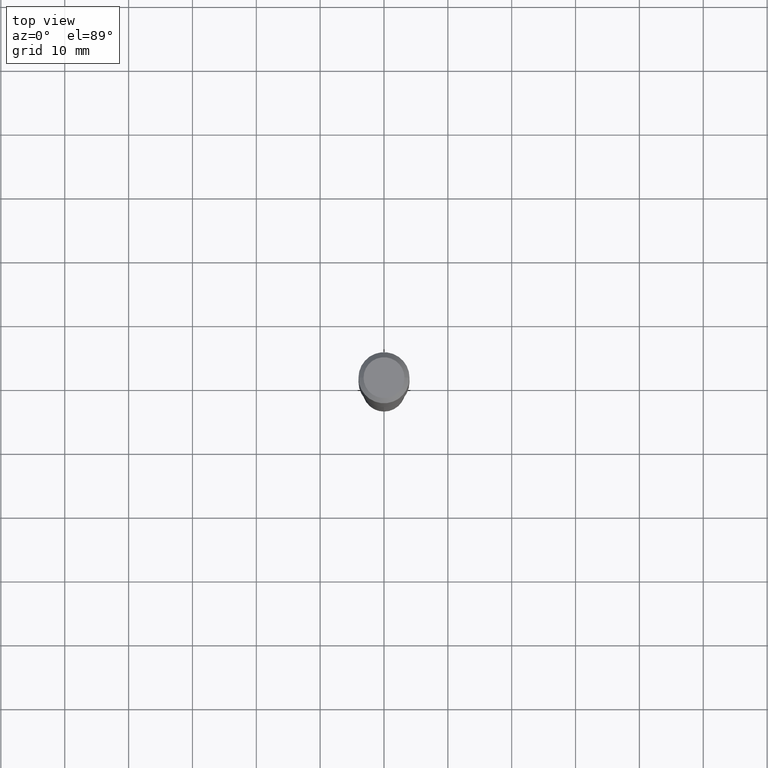
[diagram: clean part render]
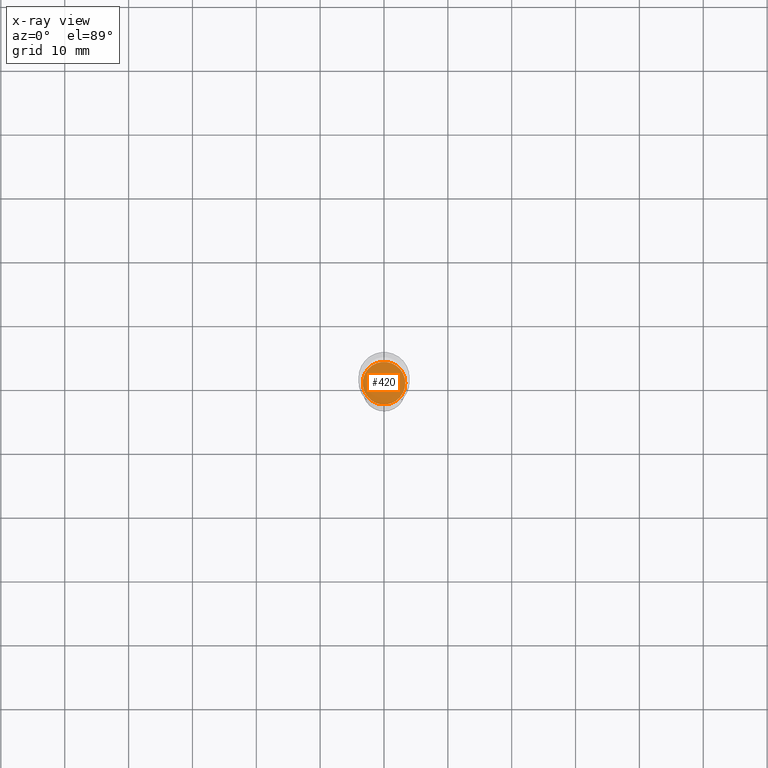
[diagram: x-ray — body ghosted, one internal face saturated and labeled with its STEP entity id]
A machine part, top view, then the same camera in x-ray: the body is ghosted and one INTERNAL B-rep face — a face not visible from any outside direction — is saturated and labeled: STEP entity #420.
In plain terms, the highlighted planar face has unit normal (-0, 0, 1).
Its self-contained STEP definition (entity closure, byte-faithful):
#2 = EDGE_CURVE ( 'NONE', #22, #226, #352, .T. ) ;
#22 = VERTEX_POINT ( 'NONE', #126 ) ;
#32 = DIRECTION ( 'NONE',  ( 1.000000000000000000, -6.982962677686265133E-15, 0.000000000000000000 ) ) ;
#38 = PLANE ( 'NONE',  #78 ) ;
#51 = AXIS2_PLACEMENT_3D ( 'NONE', #168, #317, #32 ) ;
#66 = CARTESIAN_POINT ( 'NONE',  ( -9.017535279989762188E-30, -1.505812983671227706E-14, -1.968499999999999694 ) ) ;
#78 = AXIS2_PLACEMENT_3D ( 'NONE', #66, #210, #327 ) ;
#90 = DIRECTION ( 'NONE',  ( -2.445468806185136597E-29, 3.491481338843145583E-15, 1.000000000000000000 ) ) ;
#126 = CARTESIAN_POINT ( 'NONE',  ( 0.1313999999999999890, -7.790542311360707115E-15, -1.968500000000000139 ) ) ;
#136 = CARTESIAN_POINT ( 'NONE',  ( 4.813905344975441835E-29, -6.872981015512731707E-15, -1.968500000000000139 ) ) ;
#168 = CARTESIAN_POINT ( 'NONE',  ( 4.813905344975441835E-29, -6.872981015512731707E-15, -1.968500000000000139 ) ) ;
#195 = CIRCLE ( 'NONE', #51, 0.1313999999999999890 ) ;
#207 = CARTESIAN_POINT ( 'NONE',  ( -0.1313999999999999890, -5.936678633549849137E-15, -1.968500000000000139 ) ) ;
#210 = DIRECTION ( 'NONE',  ( -2.438088387897960049E-29, 3.491481338843145188E-15, 1.000000000000000000 ) ) ;
#226 = VERTEX_POINT ( 'NONE', #207 ) ;
#252 = EDGE_LOOP ( 'NONE', ( #470, #302 ) ) ;
#299 = AXIS2_PLACEMENT_3D ( 'NONE', #136, #90, #312 ) ;
#302 = ORIENTED_EDGE ( 'NONE', *, *, #361, .F. ) ;
#312 = DIRECTION ( 'NONE',  ( 1.000000000000000000, -6.982962677686265133E-15, 0.000000000000000000 ) ) ;
#317 = DIRECTION ( 'NONE',  ( -2.445468806185136597E-29, 3.491481338843145583E-15, 1.000000000000000000 ) ) ;
#327 = DIRECTION ( 'NONE',  ( 1.000000000000000000, -6.982962677686265922E-15, 4.876176775795935793E-29 ) ) ;
#352 = CIRCLE ( 'NONE', #299, 0.1313999999999999890 ) ;
#361 = EDGE_CURVE ( 'NONE', #226, #22, #195, .T. ) ;
#403 = FACE_OUTER_BOUND ( 'NONE', #252, .T. ) ;
#420 = ADVANCED_FACE ( 'NONE', ( #403 ), #38, .F. ) ;
#470 = ORIENTED_EDGE ( 'NONE', *, *, #2, .F. ) ;